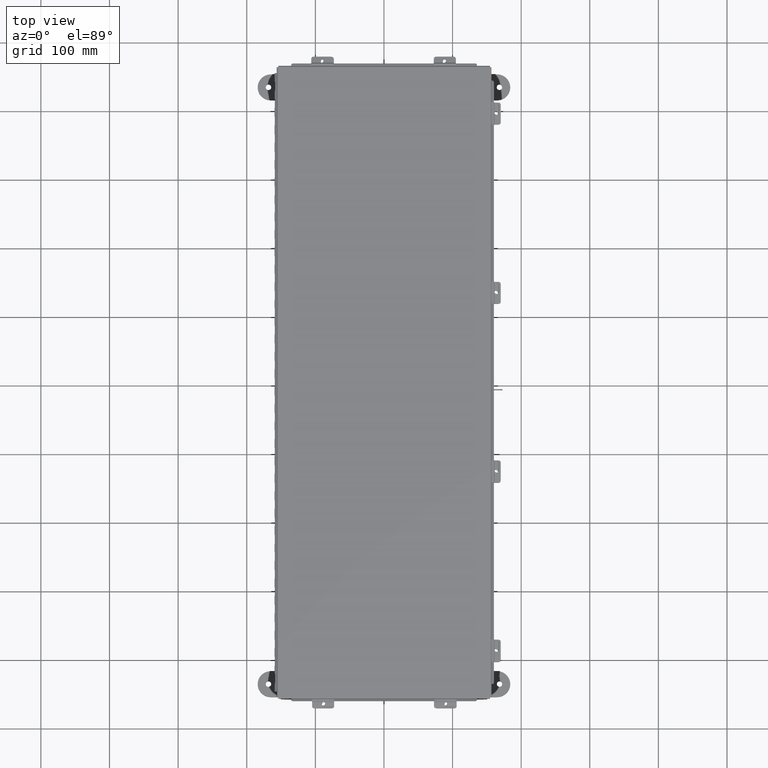
[diagram: clean part render]
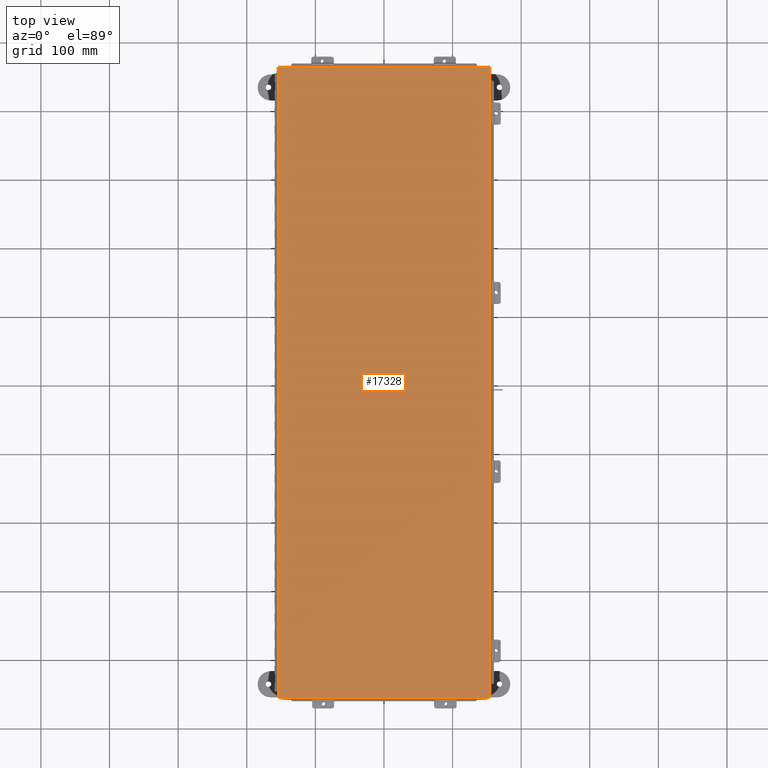
[diagram: same view with one face highlighted and labeled with its STEP entity id]
A machine part, top view. The second image highlights one B-rep face of the part: STEP entity #17328.
In plain terms, the highlighted planar face has unit normal (-0, 0, 1).
Its self-contained STEP definition (entity closure, byte-faithful):
#1219 = CARTESIAN_POINT ( 'NONE',  ( -6.068549999999991200, 18.06854999999999500, -0.07470000000000015500 ) ) ;
#1615 = DIRECTION ( 'NONE',  ( -1.000000000000000000, -5.315277860228091400E-030, -0.0000000000000000000 ) ) ;
#1898 = DIRECTION ( 'NONE',  ( -1.000000000000000000, -5.315277860228091400E-030, 0.0000000000000000000 ) ) ;
#3291 = AXIS2_PLACEMENT_3D ( 'NONE', #17901, #15678, #1898 ) ;
#5812 = VERTEX_POINT ( 'NONE', #25727 ) ;
#7537 = EDGE_CURVE ( 'NONE', #13421, #12891, #15680, .T. ) ;
#7685 = ORIENTED_EDGE ( 'NONE', *, *, #20672, .T. ) ;
#8146 = CARTESIAN_POINT ( 'NONE',  ( -6.068549999999991200, -18.07447893218813900, -0.07470000000000015500 ) ) ;
#8626 = EDGE_CURVE ( 'NONE', #12891, #5812, #10587, .T. ) ;
#10587 = LINE ( 'NONE', #26117, #15979 ) ;
#11882 = DIRECTION ( 'NONE',  ( -5.315277860228140500E-030, -1.000000000000000000, -1.597443333072548900E-029 ) ) ;
#12812 = DIRECTION ( 'NONE',  ( 5.315277860228140500E-030, 1.000000000000000000, 1.597443333072548900E-029 ) ) ;
#12891 = VERTEX_POINT ( 'NONE', #1219 ) ;
#13421 = VERTEX_POINT ( 'NONE', #14024 ) ;
#13449 = ORIENTED_EDGE ( 'NONE', *, *, #7537, .T. ) ;
#13802 = VERTEX_POINT ( 'NONE', #22313 ) ;
#14024 = CARTESIAN_POINT ( 'NONE',  ( -6.068549999999991200, -18.06855000000000500, -0.07470000000000015500 ) ) ;
#14185 = CARTESIAN_POINT ( 'NONE',  ( 6.068550000000009000, 18.07447893218813200, -0.07469999999999797600 ) ) ;
#14957 = VECTOR ( 'NONE', #12812, 39.37007874015748100 ) ;
#15404 = CARTESIAN_POINT ( 'NONE',  ( 6.074478932188144500, -18.06855000000000200, -0.07470000000000015500 ) ) ;
#15678 = DIRECTION ( 'NONE',  ( 8.490855181249487700E-059, -1.597443333072548900E-029, -1.000000000000000000 ) ) ;
#15680 = LINE ( 'NONE', #8146, #14957 ) ;
#15979 = VECTOR ( 'NONE', #21482, 39.37007874015748100 ) ;
#17328 = ADVANCED_FACE ( 'NONE', ( #19654 ), #29492, .T. ) ;
#17530 = EDGE_CURVE ( 'NONE', #5812, #13802, #26122, .T. ) ;
#17901 = CARTESIAN_POINT ( 'NONE',  ( 0.0000000000000000000, 0.0000000000000000000, -0.07470000000000015500 ) ) ;
#19654 = FACE_OUTER_BOUND ( 'NONE', #23739, .T. ) ;
#20672 = EDGE_CURVE ( 'NONE', #13802, #13421, #26447, .T. ) ;
#21039 = VECTOR ( 'NONE', #1615, 39.37007874015748100 ) ;
#21482 = DIRECTION ( 'NONE',  ( 1.000000000000000000, 5.315277860228091400E-030, -0.0000000000000000000 ) ) ;
#22313 = CARTESIAN_POINT ( 'NONE',  ( 6.068550000000009000, -18.06855000000000200, -0.07470000000000015500 ) ) ;
#22438 = ORIENTED_EDGE ( 'NONE', *, *, #17530, .T. ) ;
#23739 = EDGE_LOOP ( 'NONE', ( #28298, #22438, #7685, #13449 ) ) ;
#25425 = VECTOR ( 'NONE', #11882, 39.37007874015748100 ) ;
#25727 = CARTESIAN_POINT ( 'NONE',  ( 6.068550000000009000, 18.06854999999999800, -0.07469999999999797600 ) ) ;
#26117 = CARTESIAN_POINT ( 'NONE',  ( -6.074478932188126700, 18.06854999999999500, -0.07470000000000015500 ) ) ;
#26122 = LINE ( 'NONE', #14185, #25425 ) ;
#26447 = LINE ( 'NONE', #15404, #21039 ) ;
#28298 = ORIENTED_EDGE ( 'NONE', *, *, #8626, .T. ) ;
#29492 = PLANE ( 'NONE',  #3291 ) ;